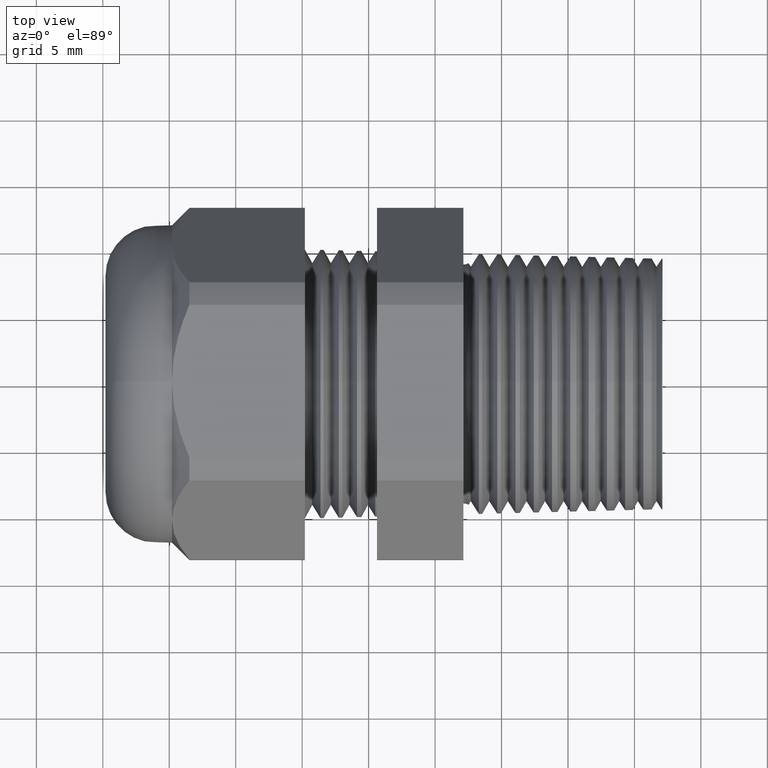
[diagram: clean part render]
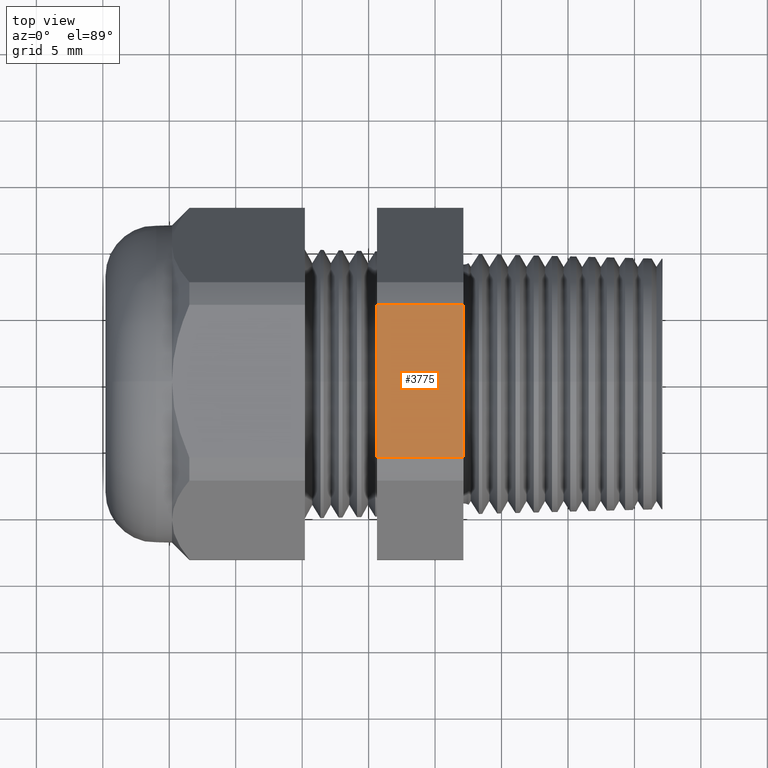
[diagram: same view with one face highlighted and labeled with its STEP entity id]
A machine part, top view. The second image highlights one B-rep face of the part: STEP entity #3775.
In plain terms, the highlighted planar face has unit normal (0, 0, 1).
Its self-contained STEP definition (entity closure, byte-faithful):
#984 = VERTEX_POINT ( 'NONE', #2806 ) ;
#986 = EDGE_CURVE ( 'NONE', #984, #987, #2871, .T. ) ;
#987 = VERTEX_POINT ( 'NONE', #2867 ) ;
#2806 = CARTESIAN_POINT ( 'NONE',  ( -0.3100000000000000000, 0.2264307620443832800, 0.4699999999999999200 ) ) ;
#2867 = CARTESIAN_POINT ( 'NONE',  ( -0.3100000000000000000, -0.2264307620443835600, 0.4699999999999997500 ) ) ;
#2868 = DIRECTION ( 'NONE',  ( 0.0000000000000000000, -1.000000000000000000, 0.0000000000000000000 ) ) ;
#2869 = VECTOR ( 'NONE', #2868, 39.37007874015748100 ) ;
#2870 = CARTESIAN_POINT ( 'NONE',  ( -0.3100000000000000000, 0.9400000000000000600, 0.4699999999999999200 ) ) ;
#2871 = LINE ( 'NONE', #2870, #2869 ) ;
#3111 = PLANE ( 'NONE',  #3175 ) ;
#3112 = FACE_OUTER_BOUND ( 'NONE', #3763, .T. ) ;
#3113 = DIRECTION ( 'NONE',  ( -1.000000000000000000, 0.0000000000000000000, 0.0000000000000000000 ) ) ;
#3114 = VECTOR ( 'NONE', #3113, 39.37007874015748100 ) ;
#3115 = CARTESIAN_POINT ( 'NONE',  ( 0.2800000000000000300, 0.2264307620443832800, 0.4699999999999999200 ) ) ;
#3116 = LINE ( 'NONE', #3115, #3114 ) ;
#3172 = DIRECTION ( 'NONE',  ( 1.000000000000000000, 0.0000000000000000000, 0.0000000000000000000 ) ) ;
#3173 = DIRECTION ( 'NONE',  ( 0.0000000000000000000, 0.0000000000000000000, 1.000000000000000000 ) ) ;
#3174 = CARTESIAN_POINT ( 'NONE',  ( 0.2800000000000000300, -0.2264307620443832800, 0.4699999999999999200 ) ) ;
#3175 = AXIS2_PLACEMENT_3D ( 'NONE', #3174, #3173, #3172 ) ;
#3491 = CARTESIAN_POINT ( 'NONE',  ( -0.5659055118110235500, 0.2264307620443832800, 0.4699999999999999200 ) ) ;
#3492 = DIRECTION ( 'NONE',  ( 0.0000000000000000000, 1.000000000000000000, 0.0000000000000000000 ) ) ;
#3493 = VECTOR ( 'NONE', #3492, 39.37007874015748100 ) ;
#3494 = CARTESIAN_POINT ( 'NONE',  ( -0.5659055118110234400, 0.9400000000000000600, 0.4699999999999999200 ) ) ;
#3495 = LINE ( 'NONE', #3494, #3493 ) ;
#3571 = CARTESIAN_POINT ( 'NONE',  ( -0.5659055118110235500, -0.2264307620443835600, 0.4699999999999997500 ) ) ;
#3607 = DIRECTION ( 'NONE',  ( -1.000000000000000000, 0.0000000000000000000, 0.0000000000000000000 ) ) ;
#3608 = VECTOR ( 'NONE', #3607, 39.37007874015748100 ) ;
#3609 = CARTESIAN_POINT ( 'NONE',  ( 0.2800000000000000300, -0.2264307620443835600, 0.4699999999999997500 ) ) ;
#3610 = LINE ( 'NONE', #3609, #3608 ) ;
#3761 = ORIENTED_EDGE ( 'NONE', *, *, #3771, .T. ) ;
#3763 = EDGE_LOOP ( 'NONE', ( #3761, #4033, #4034, #4031 ) ) ;
#3771 = EDGE_CURVE ( 'NONE', #984, #3986, #3116, .T. ) ;
#3775 = ADVANCED_FACE ( 'NONE', ( #3112 ), #3111, .T. ) ;
#3985 = EDGE_CURVE ( 'NONE', #4019, #3986, #3495, .T. ) ;
#3986 = VERTEX_POINT ( 'NONE', #3491 ) ;
#4019 = VERTEX_POINT ( 'NONE', #3571 ) ;
#4031 = ORIENTED_EDGE ( 'NONE', *, *, #986, .F. ) ;
#4033 = ORIENTED_EDGE ( 'NONE', *, *, #3985, .F. ) ;
#4034 = ORIENTED_EDGE ( 'NONE', *, *, #4035, .F. ) ;
#4035 = EDGE_CURVE ( 'NONE', #987, #4019, #3610, .T. ) ;